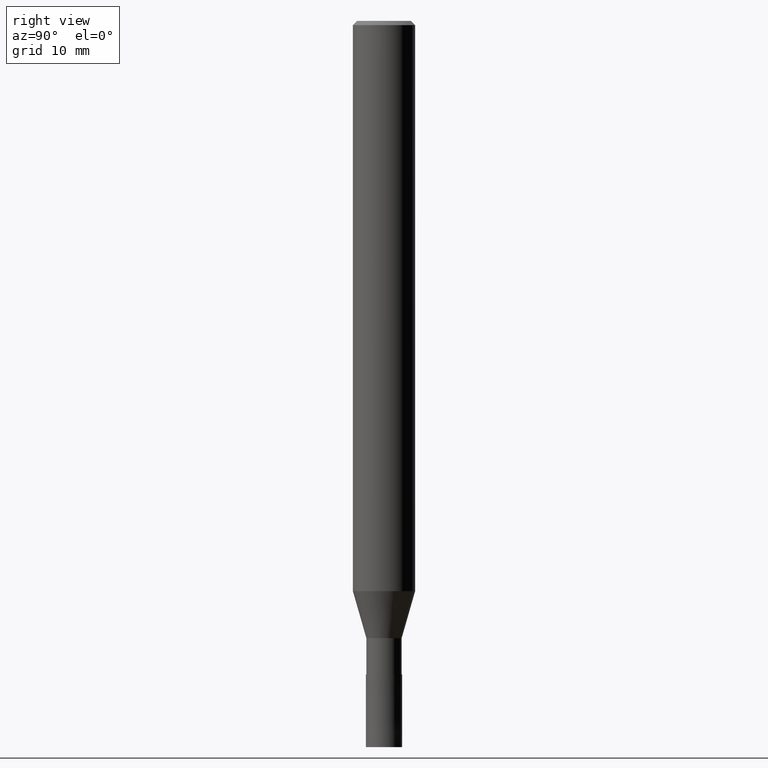
[diagram: clean part render]
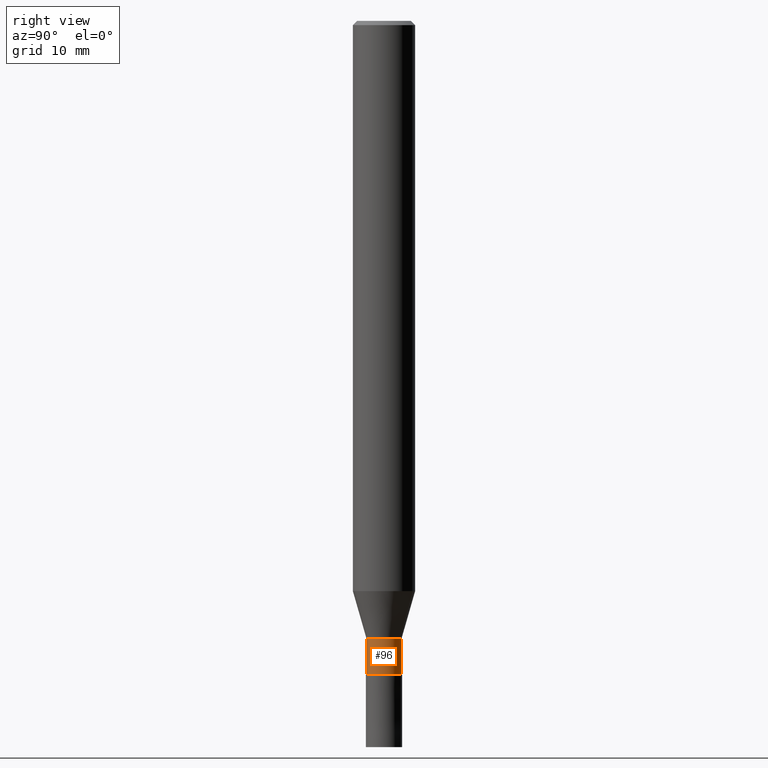
[diagram: same view with one face highlighted and labeled with its STEP entity id]
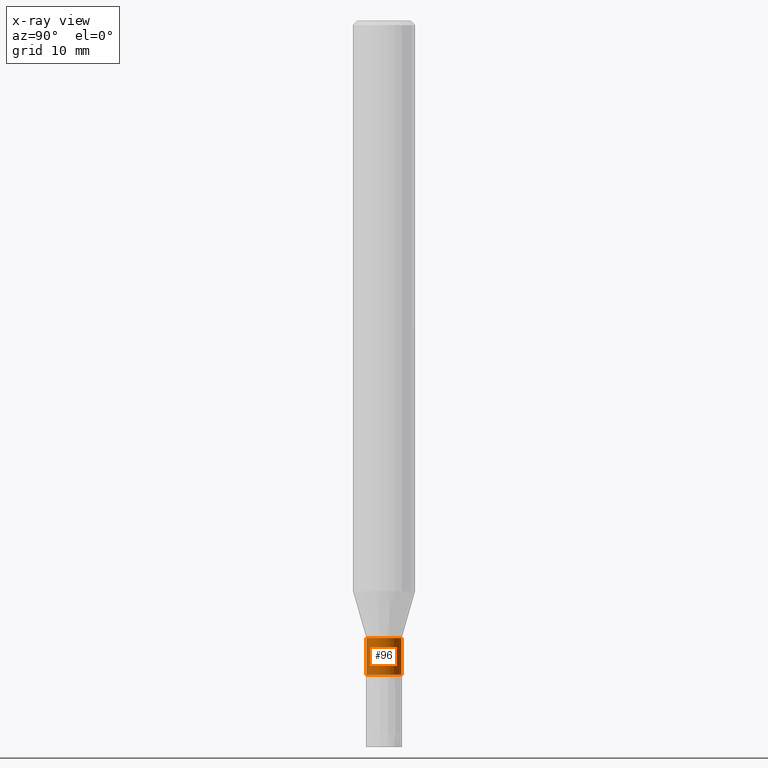
[diagram: x-ray of the same camera — body ghosted, the highlighted face saturated]
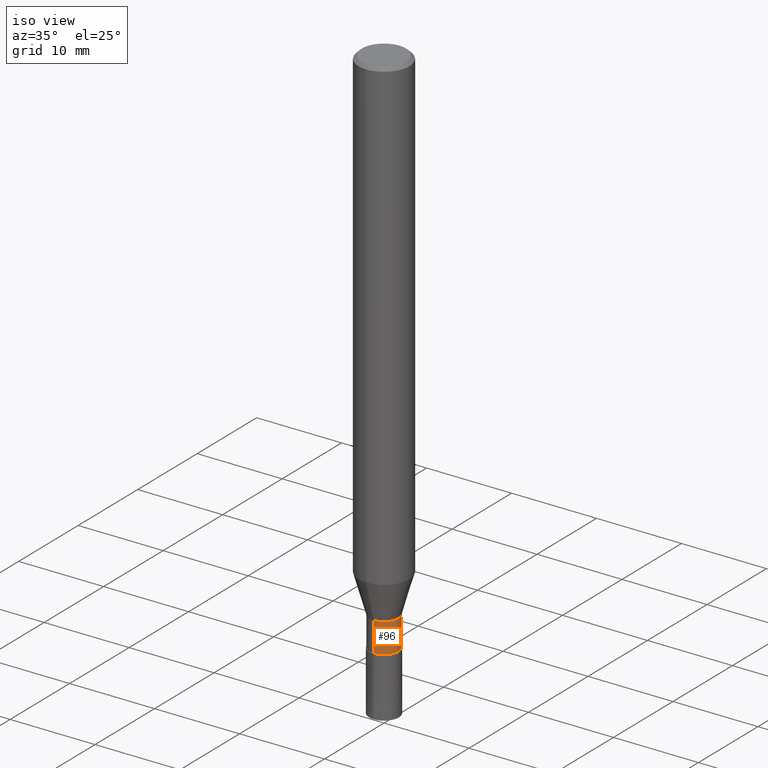
[diagram: same view with one face highlighted and labeled with its STEP entity id]
A machine part, right view. The second image highlights one B-rep face of the part: STEP entity #96.
The next image is the same camera in x-ray: the body ghosted, the highlighted face saturated — about 0% of this face is hidden behind the body in this view.
A second angle (iso view) of the same face is appended — the face is thin or edge-on in the first view.
In plain terms, the highlighted cylindrical surface (edge-blend (fillet) strip) has radius 1.7 mm, axis along (-0, -0, 1).
Its self-contained STEP definition (entity closure, byte-faithful):
#96=ADVANCED_FACE('',(#233),#234,.T.);
#138=VERTEX_POINT('',#280);
#140=VERTEX_POINT('',#282);
#144=VERTEX_POINT('',#286);
#152=EDGE_CURVE('',#144,#138,#296,.T.);
#162=EDGE_CURVE('',#138,#140,#306,.T.);
#190=VERTEX_POINT('',#342);
#194=EDGE_CURVE('',#190,#140,#346,.T.);
#204=EDGE_CURVE('',#190,#144,#357,.T.);
#233=FACE_OUTER_BOUND('',#381,.T.);
#234=CYLINDRICAL_SURFACE('',#382,1.69995);
#280=CARTESIAN_POINT('',(2.08176957118035E-016,-1.69995,-63.0));
#282=CARTESIAN_POINT('',(2.08176957118035E-016,-1.69995,-59.5));
#286=CARTESIAN_POINT('',(0.0,1.69995,-63.0));
#296=CIRCLE('',#461,1.69995);
#306=LINE('',#474,#475);
#342=CARTESIAN_POINT('',(0.0,1.69995,-59.5));
#346=CIRCLE('',#522,1.69995);
#357=LINE('',#534,#535);
#381=EDGE_LOOP('',(#547,#548,#549,#550));
#382=AXIS2_PLACEMENT_3D('',#551,#552,#553);
#461=AXIS2_PLACEMENT_3D('',#621,#622,#623);
#474=CARTESIAN_POINT('',(2.08176957118035E-016,-1.69995,-61.25));
#475=VECTOR('',#630,1.0);
#522=AXIS2_PLACEMENT_3D('',#695,#696,#697);
#534=CARTESIAN_POINT('',(-2.08176957118035E-016,1.69995,-61.25));
#535=VECTOR('',#710,1.0);
#547=ORIENTED_EDGE('',*,*,#204,.F.);
#548=ORIENTED_EDGE('',*,*,#194,.T.);
#549=ORIENTED_EDGE('',*,*,#162,.F.);
#550=ORIENTED_EDGE('',*,*,#152,.F.);
#551=CARTESIAN_POINT('',(0.0,0.0,-61.25));
#552=DIRECTION('',(-0.0,-0.0,1.0));
#553=DIRECTION('',(0.0,1.0,0.0));
#621=CARTESIAN_POINT('',(0.0,0.0,-63.0));
#622=DIRECTION('',(0.0,0.0,-1.0));
#623=DIRECTION('',(0.0,1.0,0.0));
#630=DIRECTION('',(-0.0,-0.0,1.0));
#695=CARTESIAN_POINT('',(0.0,0.0,-59.5));
#696=DIRECTION('',(0.0,0.0,-1.0));
#697=DIRECTION('',(0.0,1.0,0.0));
#710=DIRECTION('',(0.0,0.0,-1.0));